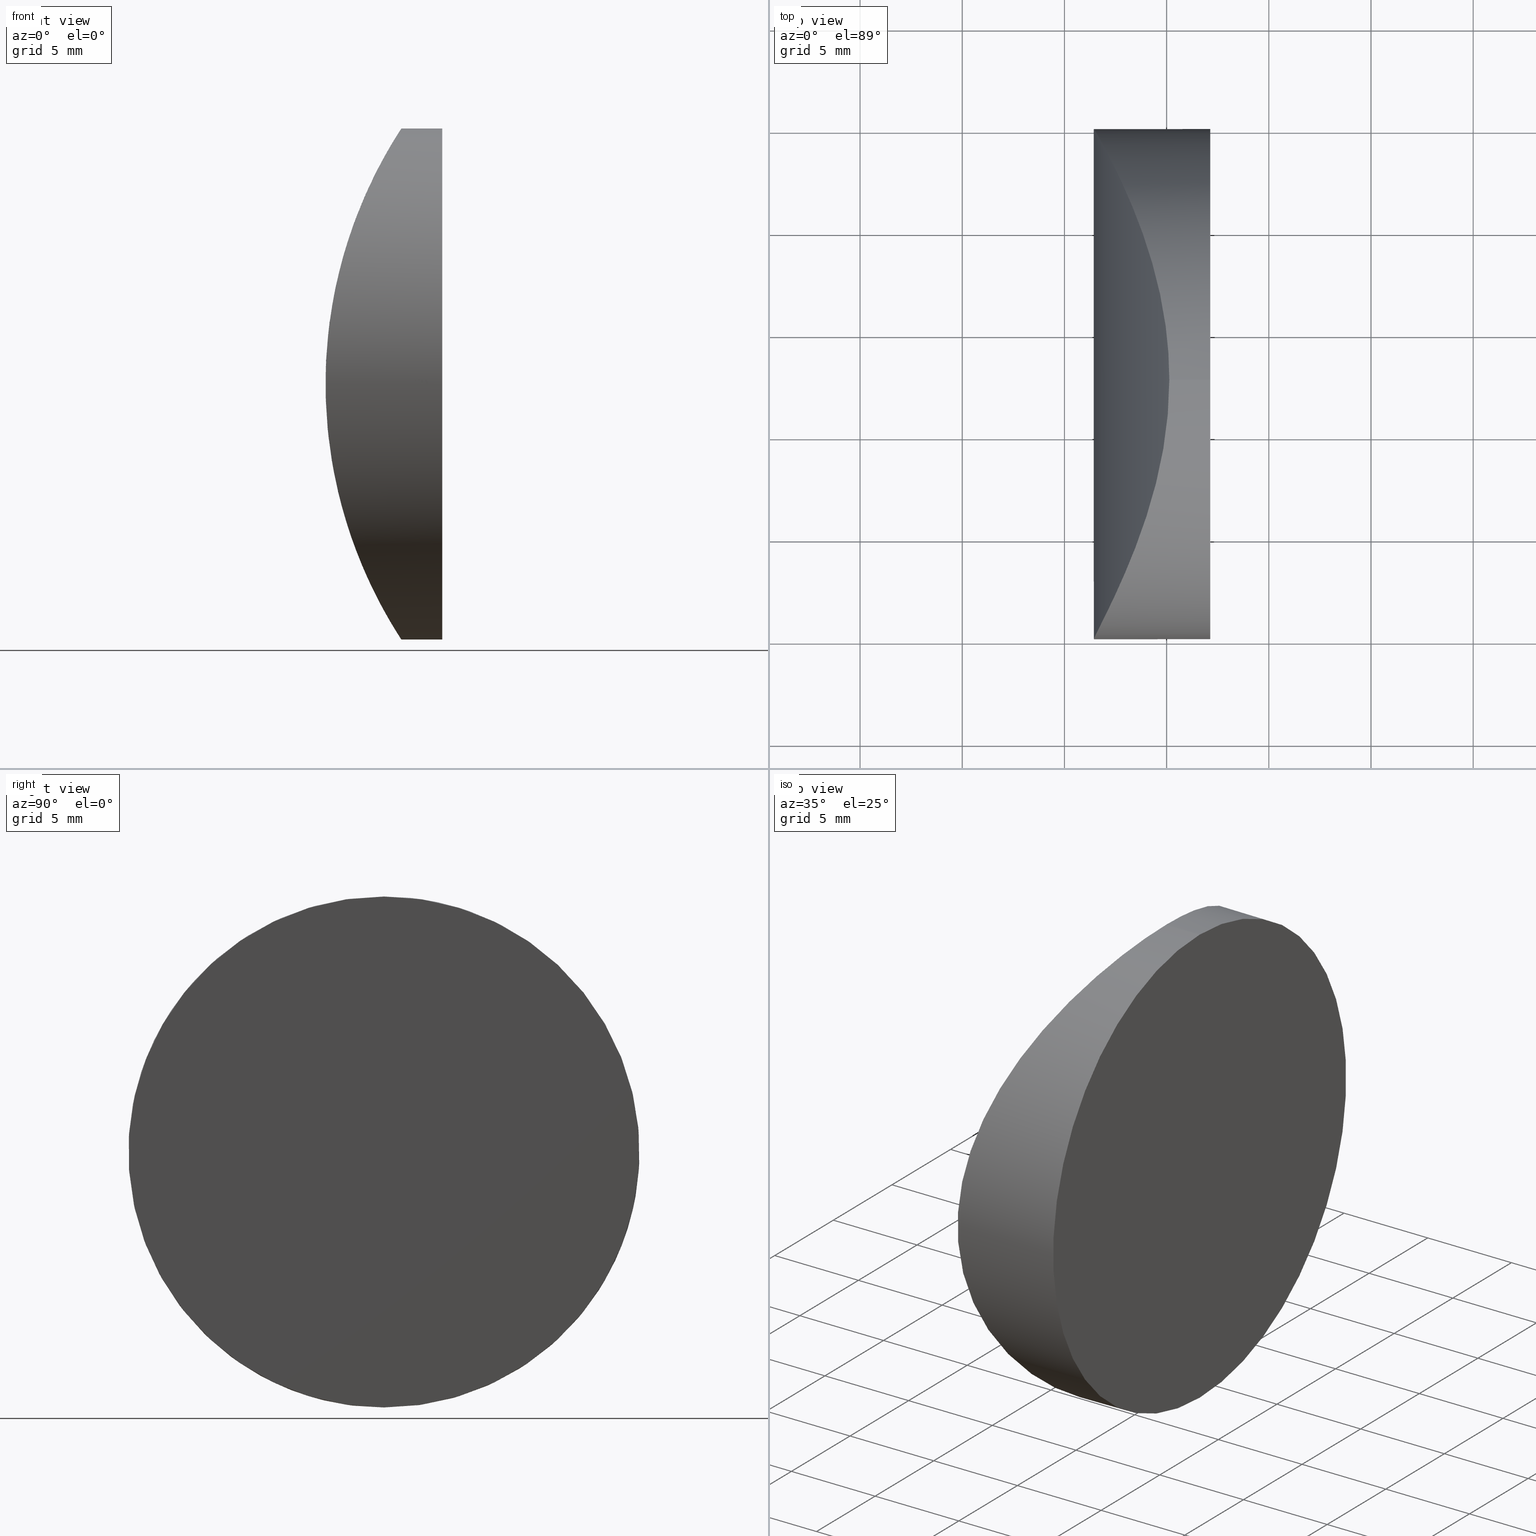
[diagram: canonical four-view strip — front | top / right | iso, engineering-drawing reading convention]
A machine part, canonical four-view strip (front | top / right | iso — engineering-drawing reading convention). The complete STEP part file that produces these views, byte-faithful:
ISO-10303-21;
HEADER;
FILE_DESCRIPTION (( 'STEP AP214' ),
    '1' );
FILE_NAME ('155290.STEP',
    '2019-06-26T05:43:10',
    ( 'user' ),
    ( '΢���й�' ),
    'SwSTEP 2.0',
    'SolidWorks 2016',
    '' );
FILE_SCHEMA (( 'AUTOMOTIVE_DESIGN' ));
ENDSEC;

DATA;
#1 = DIRECTION ( 'NONE',  ( 0.0000000000000000000, 0.0000000000000000000, -1.000000000000000000 ) ) ;
#2 = CARTESIAN_POINT ( 'NONE',  ( -25.56479566514873600, 12.50000000000000000, 7.095656191821376200E-015 ) ) ;
#3 = CARTESIAN_POINT ( 'NONE',  ( -17.26338762036938900, 22.39349177016118400, -7.650553673917174000 ) ) ;
#4 = ORIENTED_EDGE ( 'NONE', *, *, #135, .F. ) ;
#5 = CARTESIAN_POINT ( 'NONE',  ( -18.52761330071603000, 0.08598443781388288900, -1.681215018556705200 ) ) ;
#6 = CYLINDRICAL_SURFACE ( 'NONE', #142, 12.50000000000000500 ) ;
#7 = APPLICATION_CONTEXT ( 'automotive_design' ) ;
#8 = APPLICATION_PROTOCOL_DEFINITION ( 'draft international standard', 'automotive_design', 1998, #7 ) ;
#9 = CARTESIAN_POINT ( 'NONE',  ( -18.52863033963114200, 24.91588327480434000, 1.667672655787298300 ) ) ;
#10 = AXIS2_PLACEMENT_3D ( 'NONE', #182, #155, #162 ) ;
#11 = UNCERTAINTY_MEASURE_WITH_UNIT (LENGTH_MEASURE( 1.000000000000000100E-005 ), #169, 'distance_accuracy_value', 'NONE');
#12 = ORIENTED_EDGE ( 'NONE', *, *, #123, .T. ) ;
#13 = CARTESIAN_POINT ( 'NONE',  ( -16.68040783023233700, 21.04564982744533800, 9.131344996264099100 ) ) ;
#14 = DIRECTION ( 'NONE',  ( 1.000000000000000000, -2.465190328815661300E-032, -2.510324564891254900E-016 ) ) ;
#15 = CARTESIAN_POINT ( 'NONE',  ( -14.92385204013333000, 14.17070177138430300, -12.41533070515593500 ) ) ;
#16 =( GEOMETRIC_REPRESENTATION_CONTEXT ( 3 ) GLOBAL_UNCERTAINTY_ASSIGNED_CONTEXT ( ( #11 ) ) GLOBAL_UNIT_ASSIGNED_CONTEXT ( ( #169, #183, #39 ) ) REPRESENTATION_CONTEXT ( 'NONE', 'WORKASPACE' ) );
#17 = CARTESIAN_POINT ( 'NONE',  ( -17.69823828034078200, 23.31562410112468000, -6.318687398760119800 ) ) ;
#18 = CARTESIAN_POINT ( 'NONE',  ( -18.13551004206687300, 24.17543522509624800, -4.483324971603168200 ) ) ;
#19 = CARTESIAN_POINT ( 'NONE',  ( -16.56362100630440900, 4.245058217475389000, 9.395023694897128400 ) ) ;
#20 = CARTESIAN_POINT ( 'NONE',  ( -16.56141532717373700, 20.74938307912024600, 9.399949013387928400 ) ) ;
#21 = CARTESIAN_POINT ( 'NONE',  ( -15.37698173393674500, 8.032677142834137000, 11.68157020581435600 ) ) ;
#22 = CARTESIAN_POINT ( 'NONE',  ( -18.13800651503787600, 24.18024783672078500, 4.470956737368324800 ) ) ;
#23 = CARTESIAN_POINT ( 'NONE',  ( -15.65113897018362700, 6.910367474073592800, -11.20995316173752200 ) ) ;
#24 = COLOUR_RGB ( '',1.000000000000000000, 1.000000000000000000, 1.000000000000000000 ) ;
#25 = CARTESIAN_POINT ( 'NONE',  ( -17.89369084496010500, 1.294998332542075100, 5.600274259950073700 ) ) ;
#26 = CARTESIAN_POINT ( 'NONE',  ( -17.89134307510932600, 23.70034774946063300, -5.609471657547387300 ) ) ;
#27 = ORIENTED_EDGE ( 'NONE', *, *, #202, .F. ) ;
#28 = CIRCLE ( 'NONE', #10, 12.50000000000000500 ) ;
#29 = ORIENTED_EDGE ( 'NONE', *, *, #202, .T. ) ;
#30 = CARTESIAN_POINT ( 'NONE',  ( -12.86479566514873900, 25.00000000000000000, -12.50000000000000000 ) ) ;
#31 = CARTESIAN_POINT ( 'NONE',  ( -15.86299367554688200, 6.204319321556792700, -10.82877235948152600 ) ) ;
#32 = CARTESIAN_POINT ( 'NONE',  ( -18.52800521558048200, 24.91474393102698000, -1.677471026810913200 ) ) ;
#33 = VERTEX_POINT ( 'NONE', #36 ) ;
#34 = CARTESIAN_POINT ( 'NONE',  ( -12.86479566514873900, 12.50000000000000000, -12.50000000000000200 ) ) ;
#35 = CARTESIAN_POINT ( 'NONE',  ( -18.33989464001248800, 0.4358579748024471500, -3.298390782836596800 ) ) ;
#36 = CARTESIAN_POINT ( 'NONE',  ( -14.86808622634037900, 12.50000000000000000, -12.50000000000000200 ) ) ;
#37 = CYLINDRICAL_SURFACE ( 'NONE', #40, 12.50000000000000500 ) ;
#38 = CARTESIAN_POINT ( 'NONE',  ( -18.39457619173005300, 24.66644919003152500, -2.898268118389275600 ) ) ;
#39 =( NAMED_UNIT ( * ) SI_UNIT ( $, .STERADIAN. ) SOLID_ANGLE_UNIT ( ) );
#40 = AXIS2_PLACEMENT_3D ( 'NONE', #2, #61, #138 ) ;
#41 = PRODUCT_DEFINITION_FORMATION_WITH_SPECIFIED_SOURCE ( '�κ�', '', #45, .NOT_KNOWN. ) ;
#42 = CARTESIAN_POINT ( 'NONE',  ( -17.89308163020802300, 23.70381850717211900, 5.603126409149236800 ) ) ;
#43 = CARTESIAN_POINT ( 'NONE',  ( -18.33918700568738600, 24.56281182456498500, -3.303244359268473900 ) ) ;
#44 = PRESENTATION_STYLE_ASSIGNMENT (( #117 ) ) ;
#45 = PRODUCT ( '155290', '155290', '', ( #232 ) ) ;
#46 = CARTESIAN_POINT ( 'NONE',  ( -18.39469334569447800, 0.3333332693710642200, -2.897117057526677400 ) ) ;
#47 = EDGE_LOOP ( 'NONE', ( #70, #12, #53, #4 ) ) ;
#48 = CARTESIAN_POINT ( 'NONE',  ( -15.86428760718715700, 18.79986104784600400, 10.82638788908640100 ) ) ;
#49 = CARTESIAN_POINT ( 'NONE',  ( -17.70065057441071600, 1.679465164652603100, 6.310346775078026700 ) ) ;
#50 = CARTESIAN_POINT ( 'NONE',  ( -12.86479566514873500, 12.50000000000000000, 3.570698088636507300E-015 ) ) ;
#51 = CARTESIAN_POINT ( 'NONE',  ( -15.07915851057447100, 15.38454357436888200, -12.16962729911605100 ) ) ;
#52 = CARTESIAN_POINT ( 'NONE',  ( -18.57519356430573900, -0.0007299064087102697300, 0.8328507382300266400 ) ) ;
#53 = ORIENTED_EDGE ( 'NONE', *, *, #101, .F. ) ;
#54 = CARTESIAN_POINT ( 'NONE',  ( -18.52902310658856800, 0.08338697851977980300, 1.663882748139559100 ) ) ;
#55 = MECHANICAL_DESIGN_GEOMETRIC_PRESENTATION_REPRESENTATION (  '', ( #228 ), #170 ) ;
#56 = CARTESIAN_POINT ( 'NONE',  ( -12.86479566514873200, 12.50000000000000200, 12.50000000000000900 ) ) ;
#57 = CARTESIAN_POINT ( 'NONE',  ( -16.67836240827641000, 3.959386933068989000, -9.136042988240072700 ) ) ;
#58 = AXIS2_PLACEMENT_3D ( 'NONE', #50, #14, #129 ) ;
#59 = PRODUCT_RELATED_PRODUCT_CATEGORY ( 'part', '', ( #45 ) ) ;
#60 = DIRECTION ( 'NONE',  ( -2.775557561562891400E-016, 0.0000000000000000000, -1.000000000000000000 ) ) ;
#61 = DIRECTION ( 'NONE',  ( 1.000000000000000000, -0.0000000000000000000, -2.775557561562888400E-016 ) ) ;
#62 = CARTESIAN_POINT ( 'NONE',  ( -16.91647182167421400, 21.61127643755791900, 8.567043486087595000 ) ) ;
#63 = CARTESIAN_POINT ( 'NONE',  ( -15.08023161986916200, 15.39198146837262000, 12.16791833763557800 ) ) ;
#64 = SURFACE_STYLE_FILL_AREA ( #204 ) ;
#65 = CARTESIAN_POINT ( 'NONE',  ( -17.89072384957784600, 1.300855531529192100, -5.612357518137104200 ) ) ;
#66 = CARTESIAN_POINT ( 'NONE',  ( -16.32731812176787400, 4.863669379364920600, 9.904392394937724800 ) ) ;
#67 = ORIENTED_EDGE ( 'NONE', *, *, #176, .F. ) ;
#68 = CARTESIAN_POINT ( 'NONE',  ( -18.13762985305027100, 0.8204839048953914700, 4.472715877718043100 ) ) ;
#69 = PRODUCT_DEFINITION_CONTEXT ( 'detailed design', #7, 'design' ) ;
#70 = ORIENTED_EDGE ( 'NONE', *, *, #132, .T. ) ;
#71 = SURFACE_SIDE_STYLE ('',( #128 ) ) ;
#72 = CARTESIAN_POINT ( 'NONE',  ( 4.355204334851265500, 25.00000000000000000, 4.286263797015675000E-017 ) ) ;
#73 = CARTESIAN_POINT ( 'NONE',  ( -16.55945712460037500, 4.255585122771631900, -9.404294946867763000 ) ) ;
#74 = CARTESIAN_POINT ( 'NONE',  ( -16.20616550584135500, 19.80300304208802600, 10.15275221573118000 ) ) ;
#75 =( GEOMETRIC_REPRESENTATION_CONTEXT ( 3 ) GLOBAL_UNCERTAINTY_ASSIGNED_CONTEXT ( ( #206 ) ) GLOBAL_UNIT_ASSIGNED_CONTEXT ( ( #121, #124, #179 ) ) REPRESENTATION_CONTEXT ( 'NONE', 'WORKASPACE' ) );
#76 = CARTESIAN_POINT ( 'NONE',  ( -16.32555462232912500, 20.13155085822804900, -9.908064362154055600 ) ) ;
#77 = VECTOR ( 'NONE', #231, 1000.000000000000000 ) ;
#78 = CARTESIAN_POINT ( 'NONE',  ( -17.26057073695352200, 2.612675339900996100, -7.658460514138337900 ) ) ;
#79 = CARTESIAN_POINT ( 'NONE',  ( -16.32276913381359400, 4.875965669332283700, -9.913891296577094900 ) ) ;
#80 = CIRCLE ( 'NONE', #58, 12.50000000000000500 ) ;
#81 = CARTESIAN_POINT ( 'NONE',  ( -17.37649693867729200, 22.63762859946535500, -7.324061043186484100 ) ) ;
#82 = DIRECTION ( 'NONE',  ( 1.000000000000000000, -0.0000000000000000000, -2.775557561562888400E-016 ) ) ;
#83 = CARTESIAN_POINT ( 'NONE',  ( -18.34095922315616900, 0.4338563523102409400, 3.291105814303970000 ) ) ;
#84 = CARTESIAN_POINT ( 'NONE',  ( -18.57439259994055500, 0.0007393830142370423500, -0.8546183790558741200 ) ) ;
#85 = CARTESIAN_POINT ( 'NONE',  ( -16.68042798330860100, 21.04569493904238100, -9.131292333189028600 ) ) ;
#86 = EDGE_LOOP ( 'NONE', ( #118, #29 ) ) ;
#87 = CARTESIAN_POINT ( 'NONE',  ( -14.86808622634037900, 12.50000000000000000, -12.50000000000000200 ) ) ;
#88 = PRESENTATION_LAYER_ASSIGNMENT (  '', '', ( #105 ) ) ;
#89 = ORIENTED_EDGE ( 'NONE', *, *, #132, .F. ) ;
#90 = CARTESIAN_POINT ( 'NONE',  ( -17.69669515489266200, 1.687440064470188100, -6.324377505897631500 ) ) ;
#91 = CARTESIAN_POINT ( 'NONE',  ( -15.86427064206808200, 18.80008904264962100, -10.82654112241202200 ) ) ;
#92 = VERTEX_POINT ( 'NONE', #34 ) ;
#93 = PLANE ( 'NONE',  #190 ) ;
#94 = CARTESIAN_POINT ( 'NONE',  ( -15.37803833582335500, 16.97184393438794100, 11.67977328258957700 ) ) ;
#95 = ADVANCED_FACE ( 'NONE', ( #194 ), #210, .T. ) ;
#96 = ADVANCED_FACE ( 'NONE', ( #226 ), #93, .T. ) ;
#97 = ADVANCED_BREP_SHAPE_REPRESENTATION ( '155290', ( #168, #153 ), #75 ) ;
#98 = CARTESIAN_POINT ( 'NONE',  ( -18.21015587678067900, 0.6817308032869005000, -4.092849588546032500 ) ) ;
#99 = CARTESIAN_POINT ( 'NONE',  ( -14.86808622634037200, 12.50000000000000200, 12.50000000000000900 ) ) ;
#100 = CARTESIAN_POINT ( 'NONE',  ( -18.13587946089167600, 0.8238467671558484800, -4.481606198385880400 ) ) ;
#101 = EDGE_CURVE ( 'NONE', #92, #102, #80, .T. ) ;
#102 = VERTEX_POINT ( 'NONE', #56 ) ;
#103 = CARTESIAN_POINT ( 'NONE',  ( -16.91635140184444500, 21.61099107812729500, -8.567335830911288100 ) ) ;
#104 = EDGE_LOOP ( 'NONE', ( #110, #106, #165, #27 ) ) ;
#105 = STYLED_ITEM ( 'NONE', ( #44 ), #168 ) ;
#106 = ORIENTED_EDGE ( 'NONE', *, *, #176, .T. ) ;
#107 = CARTESIAN_POINT ( 'NONE',  ( -17.03355077345612400, 21.88063404096791900, 8.271346823724652400 ) ) ;
#108 = CARTESIAN_POINT ( 'NONE',  ( -15.07946617698605300, 9.613344852273746400, 12.16913709141650000 ) ) ;
#109 = CARTESIAN_POINT ( 'NONE',  ( -15.29248661029249100, 8.419744949837054900, 11.82259103441586300 ) ) ;
#110 = ORIENTED_EDGE ( 'NONE', *, *, #123, .F. ) ;
#111 = CARTESIAN_POINT ( 'NONE',  ( -18.57463686425654400, 24.99970869563127700, -0.8487631096444858700 ) ) ;
#112 = DIRECTION ( 'NONE',  ( -0.0000000000000000000, -1.000000000000000000, -0.0000000000000000000 ) ) ;
#113 = CARTESIAN_POINT ( 'NONE',  ( -16.32453789106302700, 20.12883225864398500, 9.910210946788218700 ) ) ;
#114 = CARTESIAN_POINT ( 'NONE',  ( -14.92395399111535400, 14.17337682880174700, 12.41519165892915100 ) ) ;
#115 = B_SPLINE_CURVE_WITH_KNOTS ( 'NONE', 3,
 ( #87, #219, #15, #51, #116, #164, #181, #166, #91, #198, #76, #150, #85, #103, #136, #3, #81, #17, #26, #18, #131, #43, #38, #32, #111, #203, #9, #180, #160, #220, #22, #42, #140, #199, #223, #107, #62, #13, #20, #113, #74, #48, #122, #94, #137, #148, #63, #114, #185, #207 ),
 .UNSPECIFIED., .F., .F.,
 ( 4, 2, 2, 2, 2, 2, 2, 2, 2, 2, 2, 2, 2, 2, 2, 2, 2, 2, 2, 2, 2, 2, 2, 2, 4 ),
 ( -0.01995969284328161900, -0.01746526058273050900, -0.01621804445245495300, -0.01497082832217939600, -0.01247639606162829000, -0.01122917993135274000, -0.009981963801077187200, -0.008734747670801634000, -0.007487531540526079200, -0.004993099279974971100, -0.003745883149699418000, -0.002498667019423864800, -4.234758872758565000E-006, 0.002490197501678351200, 0.003737413631953904300, 0.004984629762229460900, 0.007479062022780567200, 0.008726278153056120400, 0.009973494283331677000, 0.01122071041360723000, 0.01246792654388278300, 0.01496235880443389600, 0.01620957493470946000, 0.01745679106498501700, 0.01995122332553613700 ),
 .UNSPECIFIED. ) ;
#116 = CARTESIAN_POINT ( 'NONE',  ( -15.14285081272113200, 15.78491572653494400, -12.06777541211483900 ) ) ;
#117 = SURFACE_STYLE_USAGE ( .BOTH. , #71 ) ;
#118 = ORIENTED_EDGE ( 'NONE', *, *, #101, .T. ) ;
#119 = FACE_OUTER_BOUND ( 'NONE', #104, .T. ) ;
#120 = AXIS2_PLACEMENT_3D ( 'NONE', #72, #112, #1 ) ;
#121 =( LENGTH_UNIT ( ) NAMED_UNIT ( * ) SI_UNIT ( .MILLI., .METRE. ) );
#122 = CARTESIAN_POINT ( 'NONE',  ( -15.65218589792086600, 18.09342930781987500, 11.20810050826114700 ) ) ;
#123 = EDGE_CURVE ( 'NONE', #146, #102, #191, .T. ) ;
#124 =( NAMED_UNIT ( * ) PLANE_ANGLE_UNIT ( ) SI_UNIT ( $, .RADIAN. ) );
#125 = VECTOR ( 'NONE', #82, 1000.000000000000000 ) ;
#126 = CARTESIAN_POINT ( 'NONE',  ( -14.92393587321061300, 10.82805881832850900, 12.41520497822582800 ) ) ;
#127 = DIRECTION ( 'NONE',  ( 1.000000000000000000, 0.0000000000000000000, -2.775557561562891400E-016 ) ) ;
#128 = SURFACE_STYLE_FILL_AREA ( #141 ) ;
#129 = DIRECTION ( 'NONE',  ( -2.775557561562890400E-016, 0.0000000000000000000, -1.000000000000000000 ) ) ;
#130 = DIRECTION ( 'NONE',  ( -2.775557561562890400E-016, 0.0000000000000000000, -1.000000000000000000 ) ) ;
#131 = CARTESIAN_POINT ( 'NONE',  ( -18.20931279658043800, 24.31666044921424000, -4.097485599715956700 ) ) ;
#132 = EDGE_CURVE ( 'NONE', #33, #146, #115, .T. ) ;
#133 = FACE_OUTER_BOUND ( 'NONE', #47, .T. ) ;
#134 = CARTESIAN_POINT ( 'NONE',  ( 0.0000000000000000000, 0.0000000000000000000, 0.0000000000000000000 ) ) ;
#135 = EDGE_CURVE ( 'NONE', #33, #92, #195, .T. ) ;
#136 = CARTESIAN_POINT ( 'NONE',  ( -17.03351958878501200, 21.88057420211826800, -8.271455649538831200 ) ) ;
#137 = CARTESIAN_POINT ( 'NONE',  ( -15.29402422657705400, 16.58757779761802800, 11.82003598851910900 ) ) ;
#138 = DIRECTION ( 'NONE',  ( -2.775557561562890400E-016, 0.0000000000000000000, -1.000000000000000000 ) ) ;
#139 = CARTESIAN_POINT ( 'NONE',  ( -14.86808622634037900, 12.50000000000000000, -12.50000000000000200 ) ) ;
#140 = CARTESIAN_POINT ( 'NONE',  ( -17.69911850139834500, 23.31749409734565100, 6.316007090324403900 ) ) ;
#141 = FILL_AREA_STYLE ('',( #229 ) ) ;
#142 = AXIS2_PLACEMENT_3D ( 'NONE', #189, #186, #130 ) ;
#143 = CARTESIAN_POINT ( 'NONE',  ( -15.37732967973659000, 8.031300136408580300, -11.68096665284808300 ) ) ;
#144 = CARTESIAN_POINT ( 'NONE',  ( -14.86808622634037400, 11.65476377491269700, 12.50000000000001200 ) ) ;
#145 = CARTESIAN_POINT ( 'NONE',  ( -16.91855368267159300, 3.383867739041388000, 8.561879408533428700 ) ) ;
#146 = VERTEX_POINT ( 'NONE', #218 ) ;
#147 = CARTESIAN_POINT ( 'NONE',  ( -14.92387013241104800, 10.82786431060099600, -12.41531737315573400 ) ) ;
#148 = CARTESIAN_POINT ( 'NONE',  ( -15.14476156036567500, 15.79617643747313600, 12.06469079232922900 ) ) ;
#149 = CARTESIAN_POINT ( 'NONE',  ( -18.39616362065514800, 0.3305845588107427800, 2.885831596079681200 ) ) ;
#150 = CARTESIAN_POINT ( 'NONE',  ( -16.56166540096360500, 20.74998284857445100, -9.399366516129473900 ) ) ;
#151 = CARTESIAN_POINT ( 'NONE',  ( -15.07992240124894300, 9.610137094833678600, -12.16841107948485700 ) ) ;
#152 = CARTESIAN_POINT ( 'NONE',  ( -15.14435663914099500, 9.206247089046980700, -12.06534288063993400 ) ) ;
#153 = AXIS2_PLACEMENT_3D ( 'NONE', #134, #225, #227 ) ;
#154 = B_SPLINE_CURVE_WITH_KNOTS ( 'NONE', 3,
 ( #99, #144, #126, #108, #193, #109, #21, #174, #196, #205, #66, #19, #158, #145, #209, #197, #177, #49, #25, #68, #175, #83, #149, #54, #52, #84, #5, #46, #35, #98, #100, #65, #90, #173, #78, #230, #221, #57, #73, #79, #200, #31, #23, #143, #161, #152, #151, #147, #156, #139 ),
 .UNSPECIFIED., .F., .F.,
 ( 4, 2, 2, 2, 2, 2, 2, 2, 2, 2, 2, 2, 2, 2, 2, 2, 2, 2, 2, 2, 2, 2, 2, 2, 4 ),
 ( 0.01995122332553613700, 0.02244565589016252200, 0.02369287217247571800, 0.02494008845478890700, 0.02743452101941529600, 0.02868173730172849200, 0.02992895358404168800, 0.03117616986635488400, 0.03242338614866807600, 0.03491781871329446800, 0.03616503499560766400, 0.03741225127792086000, 0.03990668384254725300, 0.04240111640717364500, 0.04364833268948684100, 0.04489554897180003700, 0.04738998153642642900, 0.04863719781873962500, 0.04988441410105282100, 0.05113163038336601700, 0.05237884666567921300, 0.05487327923030561900, 0.05612049551261881500, 0.05736771179493201100, 0.05986214435955841000 ),
 .UNSPECIFIED. ) ;
#155 = DIRECTION ( 'NONE',  ( 1.000000000000000000, -2.465190328815661300E-032, -2.510324564891254900E-016 ) ) ;
#156 = CARTESIAN_POINT ( 'NONE',  ( -14.86808622634038500, 11.65539716516661200, -12.50000000000000200 ) ) ;
#157 = PRESENTATION_LAYER_ASSIGNMENT (  '', '', ( #228 ) ) ;
#158 = CARTESIAN_POINT ( 'NONE',  ( -16.68247242834040400, 3.949273083315837600, 9.126593866380384100 ) ) ;
#159 = CARTESIAN_POINT ( 'NONE',  ( -25.56479566514873300, 12.50000000000000200, 12.50000000000001200 ) ) ;
#160 = CARTESIAN_POINT ( 'NONE',  ( -18.34164072889957400, 24.56742412260044600, 3.286396779860278900 ) ) ;
#161 = CARTESIAN_POINT ( 'NONE',  ( -15.29342292701647000, 8.415335590800459900, -11.82103310756038900 ) ) ;
#162 = DIRECTION ( 'NONE',  ( -2.775557561562890400E-016, 0.0000000000000000000, -1.000000000000000000 ) ) ;
#163 = MECHANICAL_DESIGN_GEOMETRIC_PRESENTATION_REPRESENTATION (  '', ( #105 ), #16 ) ;
#164 = CARTESIAN_POINT ( 'NONE',  ( -15.29187884498532300, 16.57730232728454200, -11.82359845645987300 ) ) ;
#165 = ORIENTED_EDGE ( 'NONE', *, *, #135, .T. ) ;
#166 = CARTESIAN_POINT ( 'NONE',  ( -15.65125923568264500, 18.09052200596139300, -11.20978815901771400 ) ) ;
#167 = APPLICATION_CONTEXT ( 'automotive_design' ) ;
#168 = MANIFOLD_SOLID_BREP ( '�г�-����8', #188 ) ;
#169 =( LENGTH_UNIT ( ) NAMED_UNIT ( * ) SI_UNIT ( .MILLI., .METRE. ) );
#170 =( GEOMETRIC_REPRESENTATION_CONTEXT ( 3 ) GLOBAL_UNCERTAINTY_ASSIGNED_CONTEXT ( ( #224 ) ) GLOBAL_UNIT_ASSIGNED_CONTEXT ( ( #212, #213, #215 ) ) REPRESENTATION_CONTEXT ( 'NONE', 'WORKASPACE' ) );
#172 = APPLICATION_PROTOCOL_DEFINITION ( 'draft international standard', 'automotive_design', 1998, #167 ) ;
#171 = PRODUCT_DEFINITION_SHAPE ( 'NONE', 'NONE',  #214 ) ;
#173 = CARTESIAN_POINT ( 'NONE',  ( -17.37331548285645900, 2.369171120686520000, -7.333560323417320800 ) ) ;
#174 = CARTESIAN_POINT ( 'NONE',  ( -15.65231174664785700, 6.905661292075259400, 11.20792569368297500 ) ) ;
#175 = CARTESIAN_POINT ( 'NONE',  ( -18.21133457684188900, 0.6794813680693221300, 4.086384622109013900 ) ) ;
#176 = EDGE_CURVE ( 'NONE', #146, #33, #154, .T. ) ;
#177 = CARTESIAN_POINT ( 'NONE',  ( -17.37890926063700200, 2.357203128933022600, 7.316917675391060500 ) ) ;
#178 = EDGE_LOOP ( 'NONE', ( #89, #67 ) ) ;
#179 =( NAMED_UNIT ( * ) SI_UNIT ( $, .STERADIAN. ) SOLID_ANGLE_UNIT ( ) );
#180 = CARTESIAN_POINT ( 'NONE',  ( -18.39627256416714800, 24.66961762372587700, 2.884740766066733900 ) ) ;
#181 = CARTESIAN_POINT ( 'NONE',  ( -15.37627015529023200, 16.96416268522043300, -11.68276821807158700 ) ) ;
#182 = CARTESIAN_POINT ( 'NONE',  ( -12.86479566514873500, 12.50000000000000000, 3.570698088636507300E-015 ) ) ;
#183 =( NAMED_UNIT ( * ) PLANE_ANGLE_UNIT ( ) SI_UNIT ( $, .RADIAN. ) );
#184 = CARTESIAN_POINT ( 'NONE',  ( -25.56479566514874000, 12.50000000000000000, -12.49999999999999800 ) ) ;
#185 = CARTESIAN_POINT ( 'NONE',  ( -14.86808622634036900, 13.34523612205167700, 12.50000000000000500 ) ) ;
#186 = DIRECTION ( 'NONE',  ( 1.000000000000000000, -0.0000000000000000000, -2.775557561562888400E-016 ) ) ;
#187 = ADVANCED_FACE ( 'NONE', ( #119 ), #37, .T. ) ;
#188 = CLOSED_SHELL ( 'NONE', ( #217, #95, #96, #187 ) ) ;
#189 = CARTESIAN_POINT ( 'NONE',  ( -25.56479566514873600, 12.50000000000000000, 7.095656191821376200E-015 ) ) ;
#190 = AXIS2_PLACEMENT_3D ( 'NONE', #30, #127, #60 ) ;
#191 = LINE ( 'NONE', #159, #77 ) ;
#192 = FILL_AREA_STYLE_COLOUR ( '', #24 ) ;
#193 = CARTESIAN_POINT ( 'NONE',  ( -15.14324938057789700, 9.212688166414739800, 12.06713391614598900 ) ) ;
#194 = FACE_OUTER_BOUND ( 'NONE', #178, .T. ) ;
#195 = LINE ( 'NONE', #184, #125 ) ;
#196 = CARTESIAN_POINT ( 'NONE',  ( -15.86557226777925500, 6.195708315853865500, 10.82414216719595900 ) ) ;
#197 = CARTESIAN_POINT ( 'NONE',  ( -17.26577083515351800, 2.601301947710402900, 7.643834286324009900 ) ) ;
#198 = CARTESIAN_POINT ( 'NONE',  ( -16.20784508606563500, 19.80779138234205700, -10.14938243280424300 ) ) ;
#199 = CARTESIAN_POINT ( 'NONE',  ( -17.37573951778210800, 22.63602493196675200, 7.326392673501287900 ) ) ;
#200 = CARTESIAN_POINT ( 'NONE',  ( -16.20450748924741500, 5.201672013789926800, -10.15610088125858600 ) ) ;
#201 = PRESENTATION_STYLE_ASSIGNMENT (( #211 ) ) ;
#202 = EDGE_CURVE ( 'NONE', #102, #92, #28, .T. ) ;
#203 = CARTESIAN_POINT ( 'NONE',  ( -18.57495365928814800, 25.00028982446142200, 0.8401610538459604000 ) ) ;
#204 = FILL_AREA_STYLE ('',( #192 ) ) ;
#205 = CARTESIAN_POINT ( 'NONE',  ( -16.20951392086670500, 5.187508376525389800, 10.14600921940394000 ) ) ;
#206 = UNCERTAINTY_MEASURE_WITH_UNIT (LENGTH_MEASURE( 1.000000000000000100E-005 ), #121, 'distance_accuracy_value', 'NONE');
#207 = CARTESIAN_POINT ( 'NONE',  ( -14.86808622634037200, 12.50000000000000200, 12.50000000000000900 ) ) ;
#208 = SURFACE_SIDE_STYLE ('',( #64 ) ) ;
#209 = CARTESIAN_POINT ( 'NONE',  ( -17.03579089241455700, 3.114248424268444700, 8.265596958831039800 ) ) ;
#210 = CYLINDRICAL_SURFACE ( 'NONE', #120, 22.92999999999999600 ) ;
#211 = SURFACE_STYLE_USAGE ( .BOTH. , #208 ) ;
#212 =( LENGTH_UNIT ( ) NAMED_UNIT ( * ) SI_UNIT ( .MILLI., .METRE. ) );
#213 =( NAMED_UNIT ( * ) PLANE_ANGLE_UNIT ( ) SI_UNIT ( $, .RADIAN. ) );
#214 = PRODUCT_DEFINITION ( 'δ֪', '', #41, #69 ) ;
#215 =( NAMED_UNIT ( * ) SI_UNIT ( $, .STERADIAN. ) SOLID_ANGLE_UNIT ( ) );
#216 = COLOUR_RGB ( '',1.000000000000000000, 1.000000000000000000, 1.000000000000000000 ) ;
#217 = ADVANCED_FACE ( 'NONE', ( #133 ), #6, .T. ) ;
#218 = CARTESIAN_POINT ( 'NONE',  ( -14.86808622634037200, 12.50000000000000200, 12.50000000000000900 ) ) ;
#219 = CARTESIAN_POINT ( 'NONE',  ( -14.86808622634037900, 13.34460273187496600, -12.50000000000000200 ) ) ;
#220 = CARTESIAN_POINT ( 'NONE',  ( -18.21219791401690100, 24.32216534180724600, 4.081609410559344100 ) ) ;
#221 = CARTESIAN_POINT ( 'NONE',  ( -16.91427217671578400, 3.393860713917885800, -8.572489740120735400 ) ) ;
#222 = SHAPE_DEFINITION_REPRESENTATION ( #171, #97 ) ;
#223 = CARTESIAN_POINT ( 'NONE',  ( -17.26294526172212300, 22.39251443806108500, 7.651773087439204700 ) ) ;
#224 = UNCERTAINTY_MEASURE_WITH_UNIT (LENGTH_MEASURE( 1.000000000000000100E-005 ), #212, 'distance_accuracy_value', 'NONE');
#225 = DIRECTION ( 'NONE',  ( 0.0000000000000000000, 0.0000000000000000000, 1.000000000000000000 ) ) ;
#226 = FACE_OUTER_BOUND ( 'NONE', #86, .T. ) ;
#227 = DIRECTION ( 'NONE',  ( 1.000000000000000000, 0.0000000000000000000, 0.0000000000000000000 ) ) ;
#228 = STYLED_ITEM ( 'NONE', ( #201 ), #97 ) ;
#229 = FILL_AREA_STYLE_COLOUR ( '', #216 ) ;
#230 = CARTESIAN_POINT ( 'NONE',  ( -17.03128410016963900, 3.124534968300103800, -8.277189246368019200 ) ) ;
#231 = DIRECTION ( 'NONE',  ( 1.000000000000000000, -0.0000000000000000000, -2.775557561562888400E-016 ) ) ;
#232 = PRODUCT_CONTEXT ( 'NONE', #167, 'mechanical' ) ;
ENDSEC;
END-ISO-10303-21;
